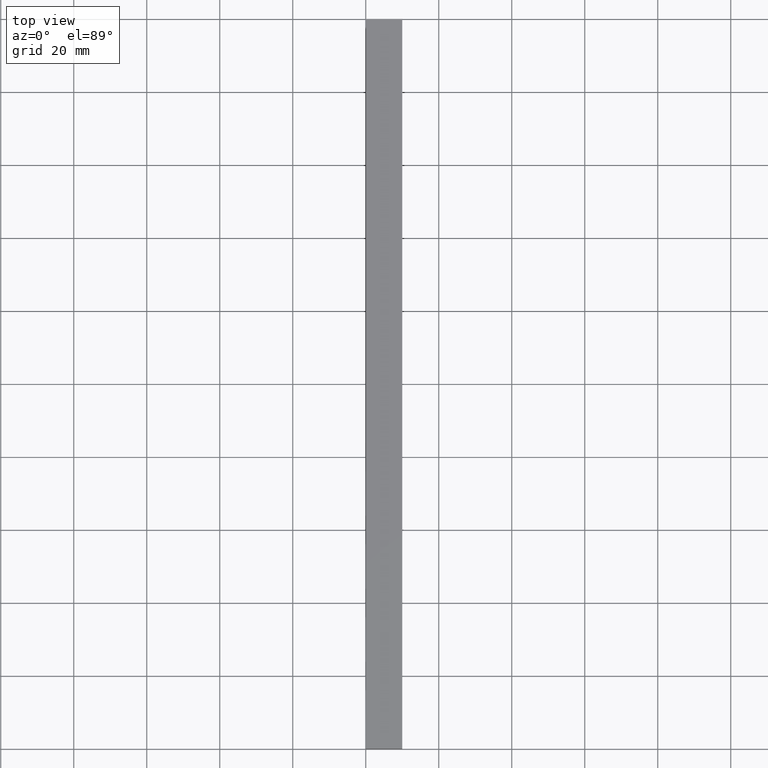
[diagram: clean part render]
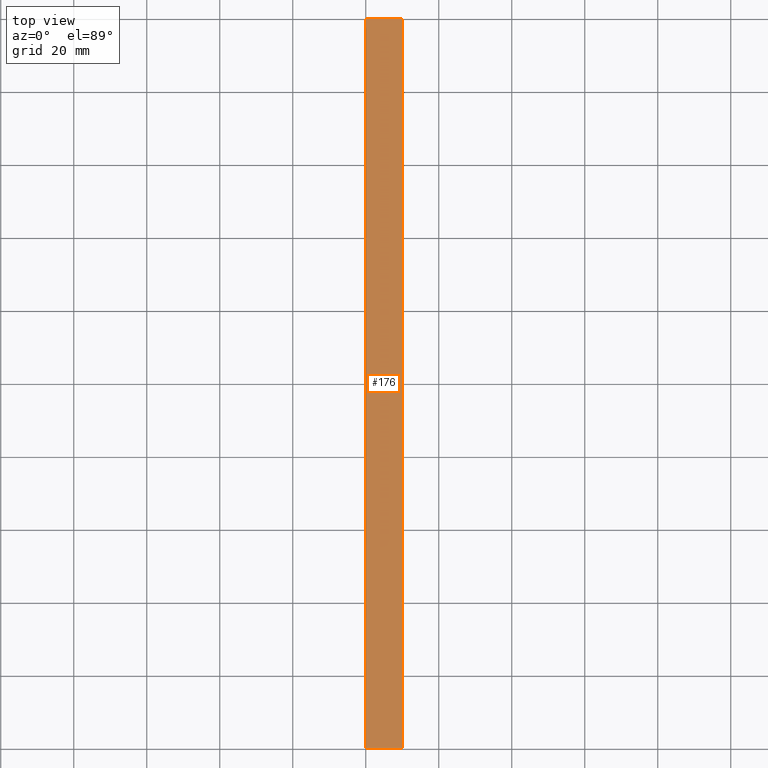
[diagram: same view with one face highlighted and labeled with its STEP entity id]
A machine part, top view. The second image highlights one B-rep face of the part: STEP entity #176.
In plain terms, the highlighted planar face has unit normal (0, 0, 1).
Its self-contained STEP definition (entity closure, byte-faithful):
#7 = VERTEX_POINT ( 'NONE', #26 ) ;
#10 = AXIS2_PLACEMENT_3D ( 'NONE', #119, #69, #13 ) ;
#13 = DIRECTION ( 'NONE',  ( 1.000000000000000000, 0.0000000000000000000, 0.0000000000000000000 ) ) ;
#15 = CARTESIAN_POINT ( 'NONE',  ( 0.0000000000000000000, 200.0000000000000000, 8.000000000000000000 ) ) ;
#19 = LINE ( 'NONE', #15, #142 ) ;
#26 = CARTESIAN_POINT ( 'NONE',  ( 10.00000000000000000, 200.0000000000000000, 8.000000000000000000 ) ) ;
#28 = VERTEX_POINT ( 'NONE', #95 ) ;
#32 = DIRECTION ( 'NONE',  ( 0.0000000000000000000, -1.000000000000000000, 0.0000000000000000000 ) ) ;
#38 = VECTOR ( 'NONE', #215, 1000.000000000000000 ) ;
#40 = VERTEX_POINT ( 'NONE', #151 ) ;
#41 = LINE ( 'NONE', #217, #38 ) ;
#56 = ORIENTED_EDGE ( 'NONE', *, *, #187, .F. ) ;
#63 = VECTOR ( 'NONE', #32, 1000.000000000000000 ) ;
#69 = DIRECTION ( 'NONE',  ( 0.0000000000000000000, 0.0000000000000000000, 1.000000000000000000 ) ) ;
#75 = EDGE_CURVE ( 'NONE', #7, #91, #19, .T. ) ;
#84 = DIRECTION ( 'NONE',  ( -1.000000000000000000, -0.0000000000000000000, -0.0000000000000000000 ) ) ;
#91 = VERTEX_POINT ( 'NONE', #123 ) ;
#95 = CARTESIAN_POINT ( 'NONE',  ( 10.00000000000000000, 0.0000000000000000000, 8.000000000000000000 ) ) ;
#103 = ORIENTED_EDGE ( 'NONE', *, *, #224, .T. ) ;
#104 = DIRECTION ( 'NONE',  ( -1.000000000000000000, -0.0000000000000000000, -0.0000000000000000000 ) ) ;
#112 = LINE ( 'NONE', #231, #63 ) ;
#119 = CARTESIAN_POINT ( 'NONE',  ( 10.00000000000000000, 1000.000000000000000, 8.000000000000000000 ) ) ;
#123 = CARTESIAN_POINT ( 'NONE',  ( 0.0000000000000000000, 200.0000000000000000, 8.000000000000000000 ) ) ;
#124 = EDGE_CURVE ( 'NONE', #28, #40, #223, .T. ) ;
#134 = PLANE ( 'NONE',  #10 ) ;
#135 = ORIENTED_EDGE ( 'NONE', *, *, #75, .T. ) ;
#142 = VECTOR ( 'NONE', #84, 1000.000000000000000 ) ;
#151 = CARTESIAN_POINT ( 'NONE',  ( 0.0000000000000000000, 0.0000000000000000000, 8.000000000000000000 ) ) ;
#175 = FACE_OUTER_BOUND ( 'NONE', #236, .T. ) ;
#176 = ADVANCED_FACE ( 'NONE', ( #175 ), #134, .T. ) ;
#186 = VECTOR ( 'NONE', #104, 1000.000000000000000 ) ;
#187 = EDGE_CURVE ( 'NONE', #7, #28, #41, .T. ) ;
#203 = ORIENTED_EDGE ( 'NONE', *, *, #124, .F. ) ;
#214 = CARTESIAN_POINT ( 'NONE',  ( 0.0000000000000000000, 0.0000000000000000000, 8.000000000000000000 ) ) ;
#215 = DIRECTION ( 'NONE',  ( 0.0000000000000000000, -1.000000000000000000, 0.0000000000000000000 ) ) ;
#217 = CARTESIAN_POINT ( 'NONE',  ( 10.00000000000000000, 1000.000000000000000, 8.000000000000000000 ) ) ;
#223 = LINE ( 'NONE', #214, #186 ) ;
#224 = EDGE_CURVE ( 'NONE', #91, #40, #112, .T. ) ;
#231 = CARTESIAN_POINT ( 'NONE',  ( 0.0000000000000000000, 1000.000000000000000, 8.000000000000000000 ) ) ;
#236 = EDGE_LOOP ( 'NONE', ( #203, #56, #135, #103 ) ) ;